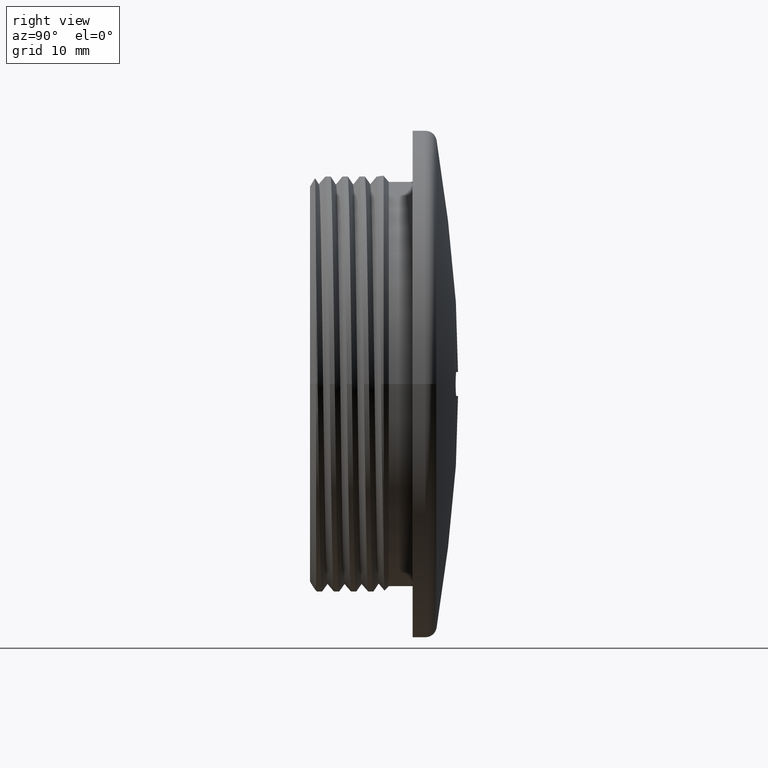
[diagram: clean part render]
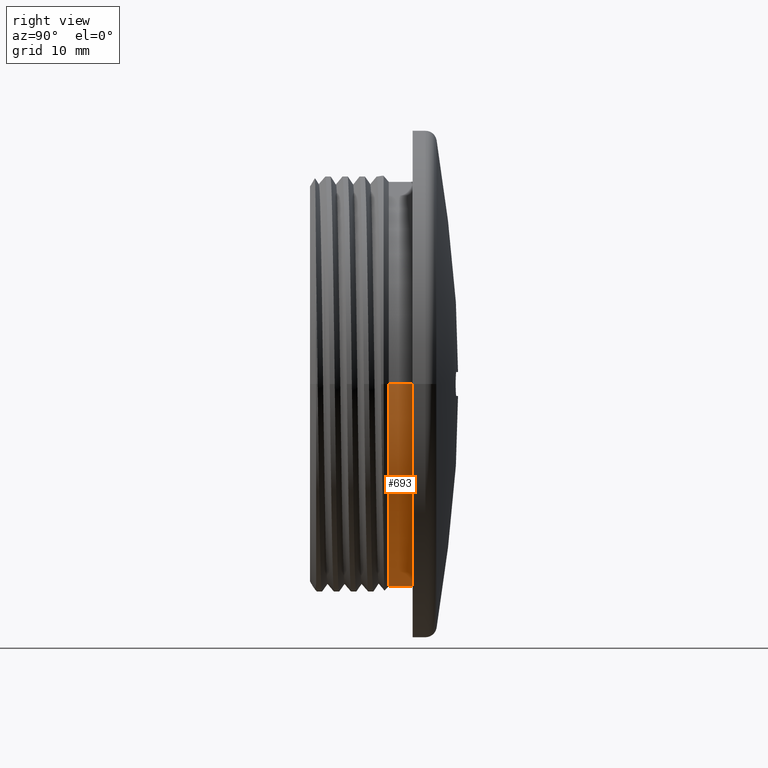
[diagram: same view with one face highlighted and labeled with its STEP entity id]
A machine part, right view. The second image highlights one B-rep face of the part: STEP entity #693.
In plain terms, the highlighted cylindrical surface (partial cylindrical patch) has radius 17.72 mm, axis along (-0, -1, -0).
Its self-contained STEP definition (entity closure, byte-faithful):
#137 = ORIENTED_EDGE ( 'NONE', *, *, #586, .F. ) ;
#154 = ORIENTED_EDGE ( 'NONE', *, *, #579, .T. ) ;
#159 = ORIENTED_EDGE ( 'NONE', *, *, #622, .T. ) ;
#191 = EDGE_LOOP ( 'NONE', ( #137, #159, #154, #202 ) ) ;
#202 = ORIENTED_EDGE ( 'NONE', *, *, #623, .T. ) ;
#279 = VERTEX_POINT ( 'NONE', #330 ) ;
#292 = VERTEX_POINT ( 'NONE', #354 ) ;
#308 = VERTEX_POINT ( 'NONE', #319 ) ;
#319 = CARTESIAN_POINT ( 'NONE',  ( 17.72000000008656800, 9.000770285657957000, 0.0000000000000000000 ) ) ;
#324 = VERTEX_POINT ( 'NONE', #325 ) ;
#325 = CARTESIAN_POINT ( 'NONE',  ( -17.72000000008581100, 6.910770285675748200, 2.202568756518844800E-015 ) ) ;
#330 = CARTESIAN_POINT ( 'NONE',  ( 17.72000000007842500, 6.910770285674059800, 0.0000000000000000000 ) ) ;
#354 = CARTESIAN_POINT ( 'NONE',  ( -17.72000000008570800, 9.000770285659642800, 2.170074128099658800E-015 ) ) ;
#446 = LINE ( 'NONE', #538, #755 ) ;
#449 = CARTESIAN_POINT ( 'NONE',  ( 17.72000000008613800, -8.438295418753390200E-013, 0.0000000000000000000 ) ) ;
#450 = LINE ( 'NONE', #449, #764 ) ;
#481 = DIRECTION ( 'NONE',  ( -4.762017730650322400E-014, -1.000000000000000000, -0.0000000000000000000 ) ) ;
#499 = DIRECTION ( 'NONE',  ( -4.762017730650322400E-014, -1.000000000000000000, -0.0000000000000000000 ) ) ;
#538 = CARTESIAN_POINT ( 'NONE',  ( -17.72000000008613800, 8.438295418753390200E-013, 2.170074128099658800E-015 ) ) ;
#579 = EDGE_CURVE ( 'NONE', #308, #279, #450, .T. ) ;
#586 = EDGE_CURVE ( 'NONE', #292, #324, #446, .T. ) ;
#622 = EDGE_CURVE ( 'NONE', #292, #308, #796, .T. ) ;
#623 = EDGE_CURVE ( 'NONE', #279, #324, #786, .T. ) ;
#693 = ADVANCED_FACE ( 'NONE', ( #1856 ), #1843, .T. ) ;
#755 = VECTOR ( 'NONE', #499, 1000.000000000000000 ) ;
#764 = VECTOR ( 'NONE', #481, 1000.000000000000000 ) ;
#773 = AXIS2_PLACEMENT_3D ( 'NONE', #2021, #2023, #2025 ) ;
#785 = AXIS2_PLACEMENT_3D ( 'NONE', #2028, #2030, #2031 ) ;
#786 = CIRCLE ( 'NONE', #785, 17.72000000008613800 ) ;
#796 = CIRCLE ( 'NONE', #773, 17.72000000008613800 ) ;
#887 = AXIS2_PLACEMENT_3D ( 'NONE', #1857, #1846, #1853 ) ;
#1843 = CYLINDRICAL_SURFACE ( 'NONE', #887, 17.72000000008613800 ) ;
#1846 = DIRECTION ( 'NONE',  ( -4.762017730650322400E-014, -1.000000000000000000, -0.0000000000000000000 ) ) ;
#1853 = DIRECTION ( 'NONE',  ( 1.000000000000000000, -4.762017730650322400E-014, 0.0000000000000000000 ) ) ;
#1856 = FACE_OUTER_BOUND ( 'NONE', #191, .T. ) ;
#1857 = CARTESIAN_POINT ( 'NONE',  ( 0.0000000000000000000, 0.0000000000000000000, 0.0000000000000000000 ) ) ;
#2021 = CARTESIAN_POINT ( 'NONE',  ( 4.286182768981777200E-013, 9.000770285658800800, 0.0000000000000000000 ) ) ;
#2023 = DIRECTION ( 'NONE',  ( -4.762017730650322400E-014, -1.000000000000000000, -0.0000000000000000000 ) ) ;
#2025 = DIRECTION ( 'NONE',  ( 1.000000000000000000, -4.757763032283465000E-014, 0.0000000000000000000 ) ) ;
#2028 = CARTESIAN_POINT ( 'NONE',  ( 3.290921063283528600E-013, 6.910770285674903600, 0.0000000000000000000 ) ) ;
#2030 = DIRECTION ( 'NONE',  ( 4.762017730650322400E-014, 1.000000000000000000, 0.0000000000000000000 ) ) ;
#2031 = DIRECTION ( 'NONE',  ( 1.000000000000000000, -4.762657850217913200E-014, 0.0000000000000000000 ) ) ;